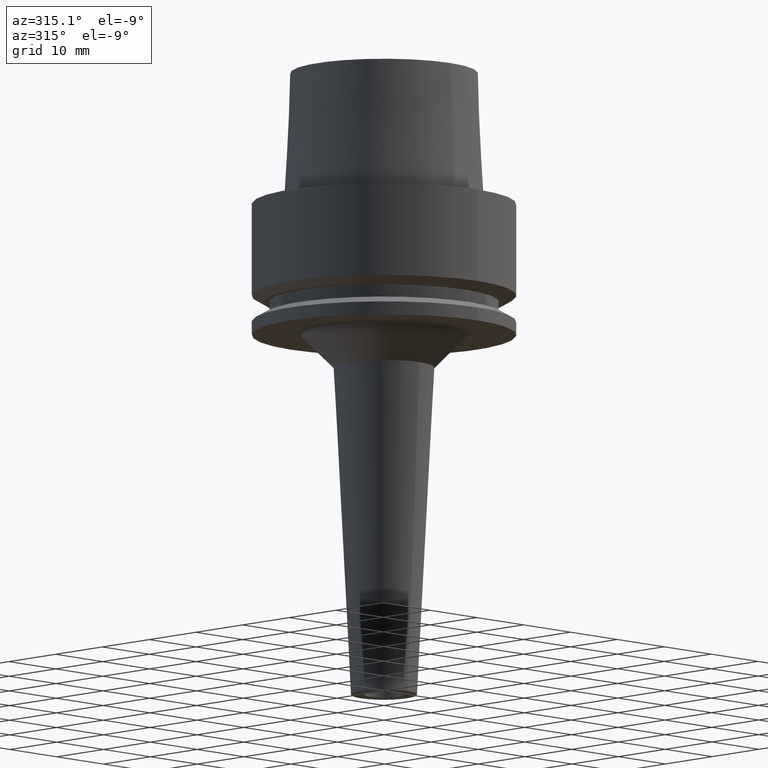
[diagram: clean part render]
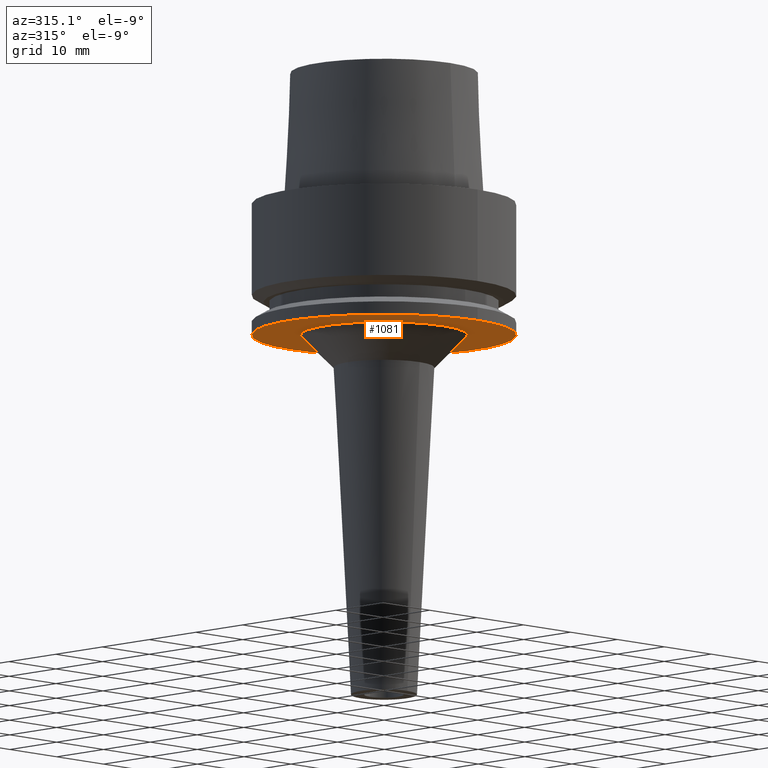
[diagram: same view with one face highlighted and labeled with its STEP entity id]
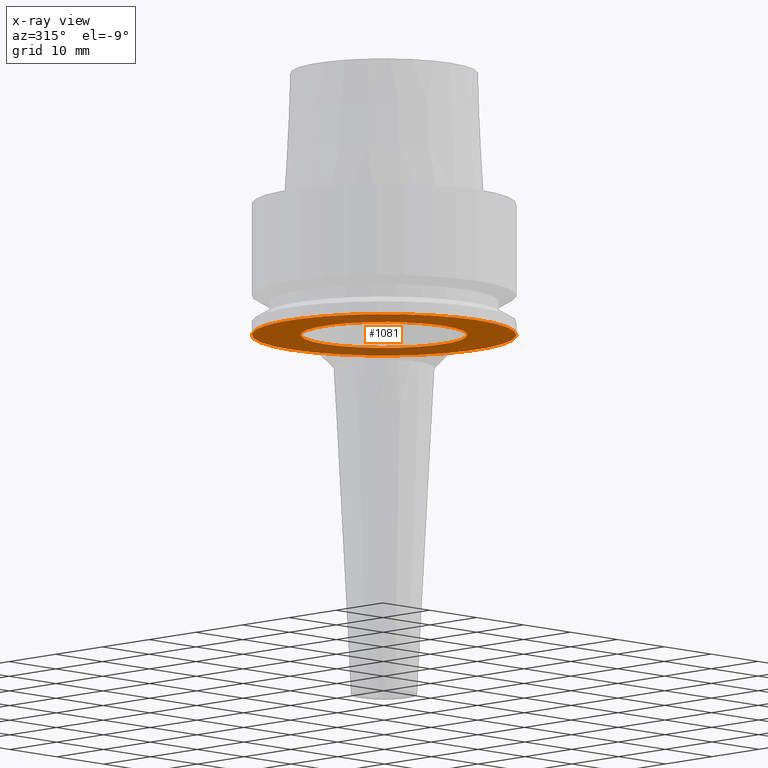
[diagram: x-ray of the same camera — body ghosted, the highlighted face saturated]
A machine part, auxiliary view. The second image highlights one B-rep face of the part: STEP entity #1081.
The next image is the same camera in x-ray: the body ghosted, the highlighted face saturated — about 23% of this face is hidden behind the body in this view.
In plain terms, the highlighted planar face has unit normal (0, 0, 1).
Its self-contained STEP definition (entity closure, byte-faithful):
#262=CARTESIAN_POINT('',(0.E0,0.E0,-2.E1));
#263=DIRECTION('',(0.E0,0.E0,1.E0));
#264=DIRECTION('',(0.E0,-1.E0,0.E0));
#265=AXIS2_PLACEMENT_3D('',#262,#263,#264);
#270=CARTESIAN_POINT('',(0.E0,0.E0,-2.E1));
#271=DIRECTION('',(0.E0,0.E0,1.E0));
#272=DIRECTION('',(0.E0,1.E0,0.E0));
#273=AXIS2_PLACEMENT_3D('',#270,#271,#272);
#278=CARTESIAN_POINT('',(0.E0,0.E0,-2.E1));
#279=DIRECTION('',(0.E0,0.E0,-1.E0));
#280=DIRECTION('',(0.E0,-1.E0,0.E0));
#281=AXIS2_PLACEMENT_3D('',#278,#279,#280);
#286=CARTESIAN_POINT('',(0.E0,0.E0,-2.E1));
#287=DIRECTION('',(0.E0,0.E0,-1.E0));
#288=DIRECTION('',(0.E0,1.E0,0.E0));
#289=AXIS2_PLACEMENT_3D('',#286,#287,#288);
#760=CARTESIAN_POINT('',(0.E0,2.E1,-2.E1));
#761=VERTEX_POINT('',#760);
#762=CARTESIAN_POINT('',(0.E0,-2.E1,-2.E1));
#763=VERTEX_POINT('',#762);
#764=CARTESIAN_POINT('',(0.E0,-1.262038896415E1,-2.E1));
#765=CARTESIAN_POINT('',(0.E0,1.262038896415E1,-2.E1));
#766=VERTEX_POINT('',#764);
#767=VERTEX_POINT('',#765);
#1066=CARTESIAN_POINT('',(0.E0,0.E0,-2.E1));
#1067=DIRECTION('',(0.E0,0.E0,1.E0));
#1068=DIRECTION('',(0.E0,1.E0,0.E0));
#1069=AXIS2_PLACEMENT_3D('',#1066,#1067,#1068);
#1070=PLANE('',#1069);
#1071=ORIENTED_EDGE('',*,*,#1045,.T.);
#1072=ORIENTED_EDGE('',*,*,#1061,.T.);
#1073=EDGE_LOOP('',(#1071,#1072));
#1074=FACE_OUTER_BOUND('',#1073,.F.);
#1076=ORIENTED_EDGE('',*,*,#1075,.T.);
#1078=ORIENTED_EDGE('',*,*,#1077,.T.);
#1079=EDGE_LOOP('',(#1076,#1078));
#1080=FACE_BOUND('',#1079,.F.);
#266=CIRCLE('',#265,2.E1);
#274=CIRCLE('',#273,2.E1);
#282=CIRCLE('',#281,1.262038896415E1);
#290=CIRCLE('',#289,1.262038896415E1);
#1045=EDGE_CURVE('',#763,#761,#266,.T.);
#1061=EDGE_CURVE('',#761,#763,#274,.T.);
#1075=EDGE_CURVE('',#766,#767,#282,.T.);
#1077=EDGE_CURVE('',#767,#766,#290,.T.);
#1081=ADVANCED_FACE('',(#1074,#1080),#1070,.F.);